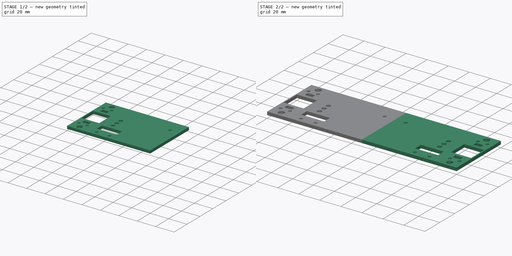
[diagram: build sequence overview — one tinted view per stage of 2, left to right]
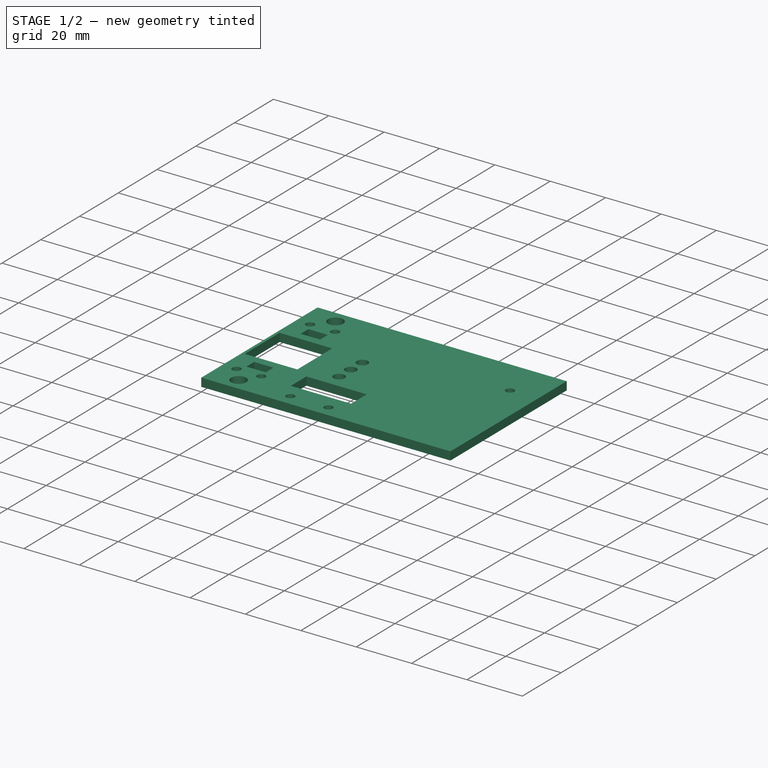
[diagram: stage 1 of 2 — iso view after this stage's code; geometry added in this stage tinted green]
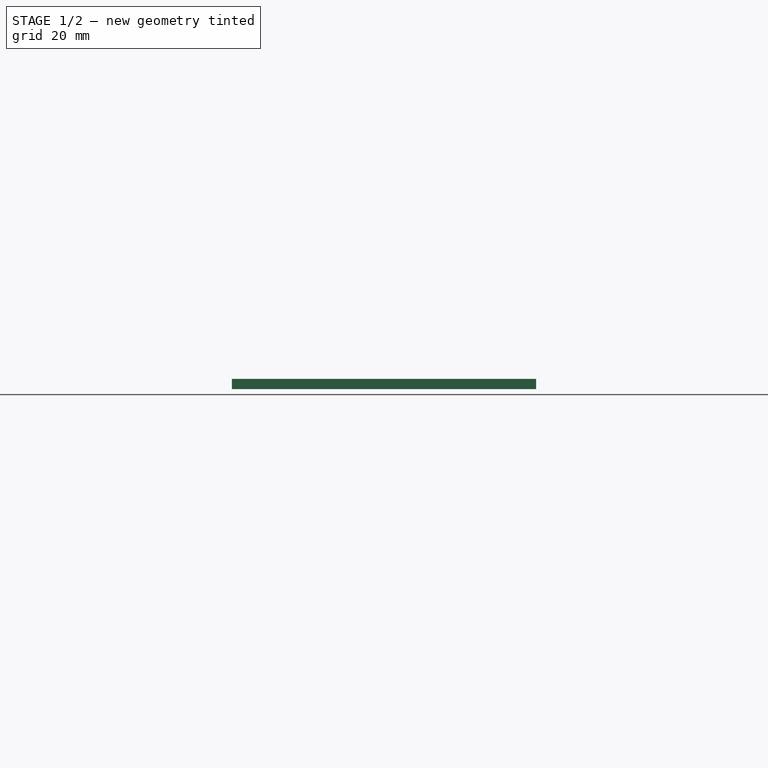
[diagram: stage 1 of 2 — front view after this stage's code; geometry added in this stage tinted green]
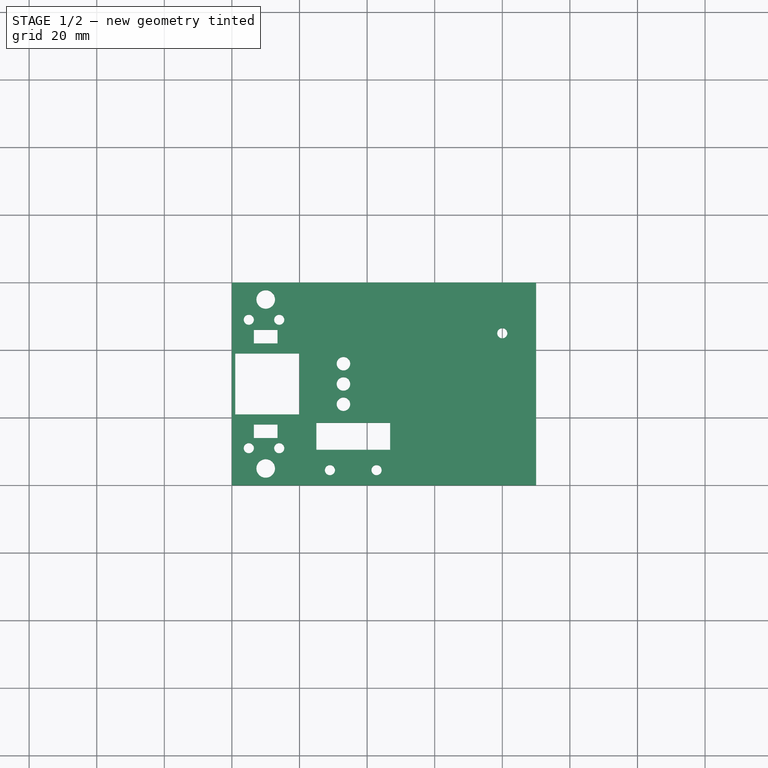
[diagram: stage 1 of 2 — top view after this stage's code; geometry added in this stage tinted green]
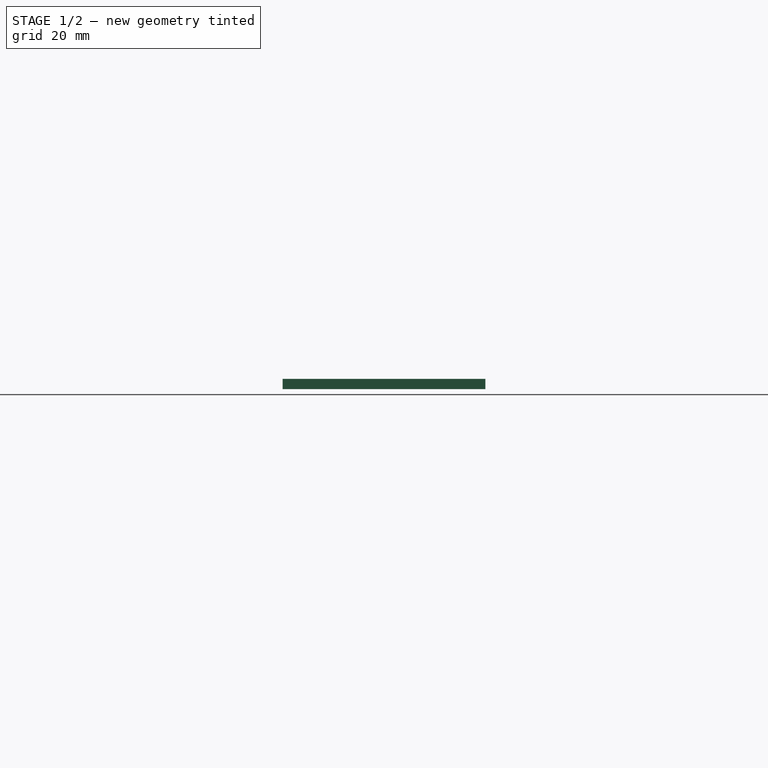
[diagram: stage 1 of 2 — right view after this stage's code; geometry added in this stage tinted green]
FCSTD DOCUMENT  (FreeCAD 0.16R6707 (Git))
Label: support_support_guidage_horizontal
License: All rights reserved
LicenseURL: http://en.wikipedia.org/wiki/All_rights_reserved
objects: Sketcher::SketchObject×1, PartDesign::Pad×1, PartDesign::Mirrored×1, Drawing::FeatureViewPart×1, Drawing::FeaturePage×1
note: 4 computed .brp shape members not serialized (recipe doc carries the construction recipe); baked Part::Feature solids carry a one-line shape summary decoded from their .brp

FEATURE [Sketcher::SketchObject] Sketch
  sketch-geometry (48):
    g0: LineSegment StartX=0 StartY=0 StartZ=0 EndX=90 EndY=0 EndZ=0
    g1: LineSegment StartX=0 StartY=60 StartZ=0 EndX=0 EndY=0 EndZ=0
    g2: GeomPoint [constr] X=10 Y=5 Z=0
    g3: GeomPoint [constr] X=6.5 Y=14 Z=0
    g4: Circle CenterX=10 CenterY=5 CenterZ=0 NormalX=0 NormalY=0 NormalZ=1 Radius=2.75
    g5: GeomPoint [constr] X=33 Y=30 Z=0
    g6: GeomPoint [constr] X=33 Y=24 Z=0
    g7: Circle CenterX=33 CenterY=24 CenterZ=0 NormalX=0 NormalY=0 NormalZ=1 Radius=2
    g8: LineSegment StartX=6.5 StartY=14 StartZ=0 EndX=13.5 EndY=14 EndZ=0
    g9: LineSegment StartX=13.5 StartY=14 StartZ=0 EndX=13.5 EndY=18 EndZ=0
    g10: LineSegment StartX=13.5 StartY=18 StartZ=0 EndX=6.5 EndY=18 EndZ=0
    g11: LineSegment StartX=6.5 StartY=18 StartZ=0 EndX=6.5 EndY=14 EndZ=0
    g12: LineSegment StartX=90 StartY=0 StartZ=0 EndX=90 EndY=60 EndZ=0
    g13: GeomPoint [constr] X=33 Y=36 Z=0
    g14: Circle CenterX=33 CenterY=36 CenterZ=0 NormalX=0 NormalY=0 NormalZ=1 Radius=2
    g15: Circle CenterX=33 CenterY=30 CenterZ=0 NormalX=0 NormalY=0 NormalZ=1 Radius=2
    g16: LineSegment StartX=0 StartY=60 StartZ=0 EndX=90 EndY=60 EndZ=0
    g17: GeomPoint [constr] X=6.5 Y=46 Z=0
    g18: LineSegment StartX=6.5 StartY=46 StartZ=0 EndX=13.5 EndY=46 EndZ=0
    g19: LineSegment StartX=13.5 StartY=46 StartZ=0 EndX=13.5 EndY=42 EndZ=0
    g20: LineSegment StartX=13.5 StartY=42 StartZ=0 EndX=6.5 EndY=42 EndZ=0
    g21: LineSegment StartX=6.5 StartY=42 StartZ=0 EndX=6.5 EndY=46 EndZ=0
    g22: GeomPoint [constr] X=10 Y=55 Z=0
    g23: Circle CenterX=10 CenterY=55 CenterZ=0 NormalX=0 NormalY=0 NormalZ=1 Radius=2.75
    g24: GeomPoint [constr] X=20 Y=49 Z=0
    g25: GeomPoint [constr] X=20 Y=11 Z=0
    g26: GeomPoint [constr] X=23 Y=11 Z=0
    g27: GeomPoint [constr] X=23 Y=49 Z=0
    g28: GeomPoint [constr] X=14 Y=49 Z=0
    g29: GeomPoint [constr] X=5 Y=49 Z=0
    g30: GeomPoint [constr] X=14 Y=11 Z=0
    g31: GeomPoint [constr] X=5 Y=11 Z=0
    g32: Circle CenterX=14 CenterY=11 CenterZ=0 NormalX=0 NormalY=0 NormalZ=1 Radius=1.5
    g33: Circle CenterX=5 CenterY=11 CenterZ=0 NormalX=0 NormalY=0 NormalZ=1 Radius=1.5
    g34: Circle CenterX=14 CenterY=49 CenterZ=0 NormalX=0 NormalY=0 NormalZ=1 Radius=1.5
    g35: Circle CenterX=5 CenterY=49 CenterZ=0 NormalX=0 NormalY=0 NormalZ=1 Radius=1.5
    g36: GeomPoint [constr] X=20 Y=39 Z=0
    g37: LineSegment StartX=20 StartY=39 StartZ=0 EndX=1 EndY=39 EndZ=0
    g38: LineSegment StartX=1 StartY=39 StartZ=0 EndX=1 EndY=21 EndZ=0
    g39: LineSegment StartX=1 StartY=21 StartZ=0 EndX=20 EndY=21 EndZ=0
    g40: LineSegment StartX=20 StartY=21 StartZ=0 EndX=20 EndY=39 EndZ=0
    g41: Circle CenterX=80 CenterY=45 CenterZ=0 NormalX=0 NormalY=0 NormalZ=1 Radius=1.5
    g42: Circle CenterX=29 CenterY=4.5 CenterZ=0 NormalX=0 NormalY=0 NormalZ=1 Radius=1.5
    g43: Circle CenterX=42.8 CenterY=4.5 CenterZ=0 NormalX=0 NormalY=0 NormalZ=1 Radius=1.5
    g44: LineSegment StartX=25 StartY=18.5 StartZ=0 EndX=46.8 EndY=18.5 EndZ=0
    g45: LineSegment StartX=46.8 StartY=18.5 StartZ=0 EndX=46.8 EndY=10.5 EndZ=0
    g46: LineSegment StartX=46.8 StartY=10.5 StartZ=0 EndX=25 EndY=10.5 EndZ=0
    g47: LineSegment StartX=25 StartY=10.5 StartZ=0 EndX=25 EndY=18.5 EndZ=0
  constraints (115):
    c: Coincident(g1,g0)
    c: Horizontal(g0)
    c: Vertical(g1)
    c: Coincident(g0,g-1)
    c: Distance(g1) = 60
    c: Distance(g0) = 90
    c: DistanceY(g2) = 5
    c: DistanceX(g2) = 10
    c: Coincident(g4,g2)
    c: Radius(g4) = 2.75
    c: DistanceX(g3) = 6.5
    c: DistanceY(g3) = 14
    c: DistanceY(g5) = 30
    c: DistanceX(g5) = 33
    c: DistanceY(g6,g5) = 6
    c: DistanceX(g5,g6) = 0
    c: Coincident(g7,g6)
    c: Coincident(g8,g9)
    c: Coincident(g9,g10)
    c: Coincident(g10,g11)
    c: Coincident(g11,g8)
    c: Horizontal(g8)
    c: Horizontal(g10)
    c: Vertical(g9)
    c: Vertical(g11)
    c: Coincident(g8,g3)
    c: Distance(g10) = 7
    c: Distance(g9) = 4
    c: Coincident(g12,g0)
    c: Vertical(g12)
    c: DistanceY(g5,g13) = 6
    c: DistanceX(g5,g13) = 0
    c: Coincident(g14,g13)
    c: Coincident(g15,g5)
    c: Radius(g15) = 2
    c: Equal(g15,g14)
    c: Equal(g15,g7)
    c: Coincident(g16,g1)
    c: Coincident(g16,g12)
    c: Horizontal(g16)
    c: DistanceX(g3,g17) = 0
    c: Coincident(g18,g19)
    c: Coincident(g19,g20)
    c: Coincident(g20,g21)
    c: Coincident(g21,g18)
    c: Horizontal(g18)
    c: Horizontal(g20)
    c: Vertical(g19)
    c: Vertical(g21)
    c: Coincident(g18,g17)
    c: Distance(g18) = 7
    c: Distance(g19) = 4
    c: DistanceY(g22,g1) = 5
    c: DistanceX(g22) = 10
    c: DistanceY(g17,g1) = 14
    c: Coincident(g23,g22)
    c: Radius(g23) = 2.75
    c: DistanceX(g24) = 20
    c: DistanceX(g24,g25) = 0
    c: DistanceY(g25) = 11
    c: DistanceY(g24,g1) = 11
    c: DistanceY(g25,g26) = 0
    c: DistanceX(g25,g26) = 3
    c: DistanceY(g24,g27) = 0
    c: DistanceX(g24,g27) = 3
    c: DistanceY(g27,g28) = 0
    c: DistanceY(g28,g29) = 0
    c: DistanceX(g28,g29) = -9
    c: DistanceY(g26,g30) = 0
    c: DistanceY(g31,g30) = 0
    c: DistanceX(g30,g31) = -9
    c: Coincident(g32,g30)
    c: Coincident(g33,g31)
    c: Coincident(g34,g28)
    c: Coincident(g35,g29)
    c: Radius(g34) = 1.5
    c: Equal(g34,g35)
    c: Equal(g34,g33)
    c: Equal(g34,g32)
    c: DistanceX(g25,g30) = -6
    c: DistanceX(g24,g28) = -6
    c: DistanceX(g36,g24) = 0
    c: DistanceY(g13,g36) = 3
    c: Coincident(g37,g38)
    c: Coincident(g38,g39)
    c: Coincident(g39,g40)
    c: Coincident(g40,g37)
    c: Horizontal(g37)
    c: Horizontal(g39)
    c: Vertical(g38)
    c: Vertical(g40)
    c: Coincident(g37,g36)
    c: Distance(g37) = 19
    c: Distance(g38) = 18
    c: DistanceX(g41,g12) = 10
    c: Radius(g41) = 1.5
    c: DistanceY(g41,g1) = 15
    c: Coincident(g44,g45)
    c: Coincident(g45,g46)
    c: Coincident(g46,g47)
    c: Coincident(g47,g44)
    c: Horizontal(g44)
    c: Horizontal(g46)
    c: Vertical(g45)
    c: Vertical(g47)
    c: DistanceX(g42,g43) = 13.8
    c: Radius(g43) = 1.5
    c: Equal(g43,g42)
    c: DistanceY(g42,g43) = 0
    c: Distance(g47) = 8
    c: DistanceY(g42,g46) = 6
    c: Distance(g46) = 21.8
    c: DistanceX(g46,g42) = 4
    c: DistanceY(g42) = 4.5
    c: DistanceX(g27,g44) = 2
FEATURE [PartDesign::Pad] Pad
  Length = 3
  Length2 = 100
  Sketch = -> Sketch
  Type = 0
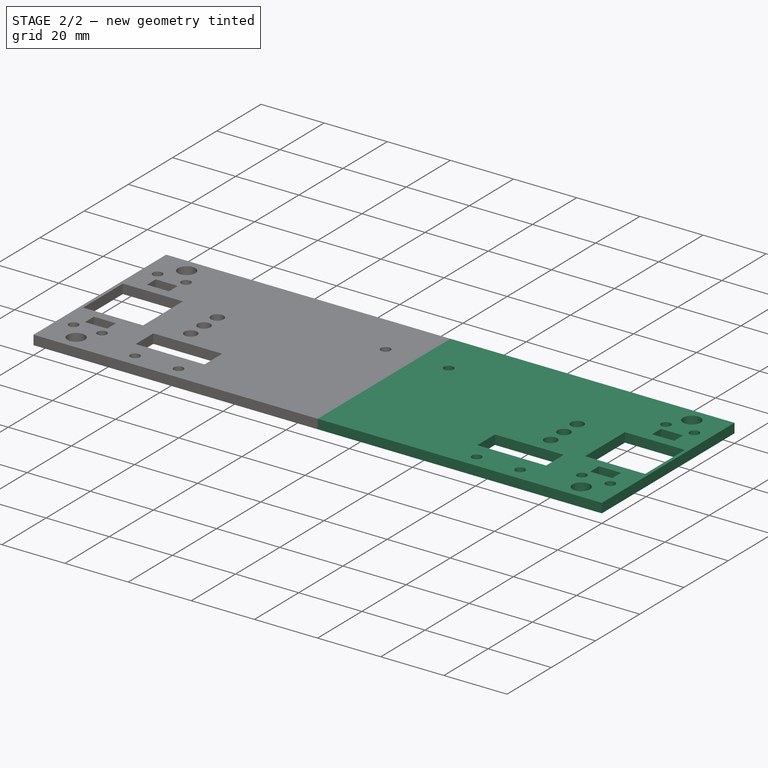
[diagram: stage 2 of 2 — iso view after this stage's code; geometry added in this stage tinted green]
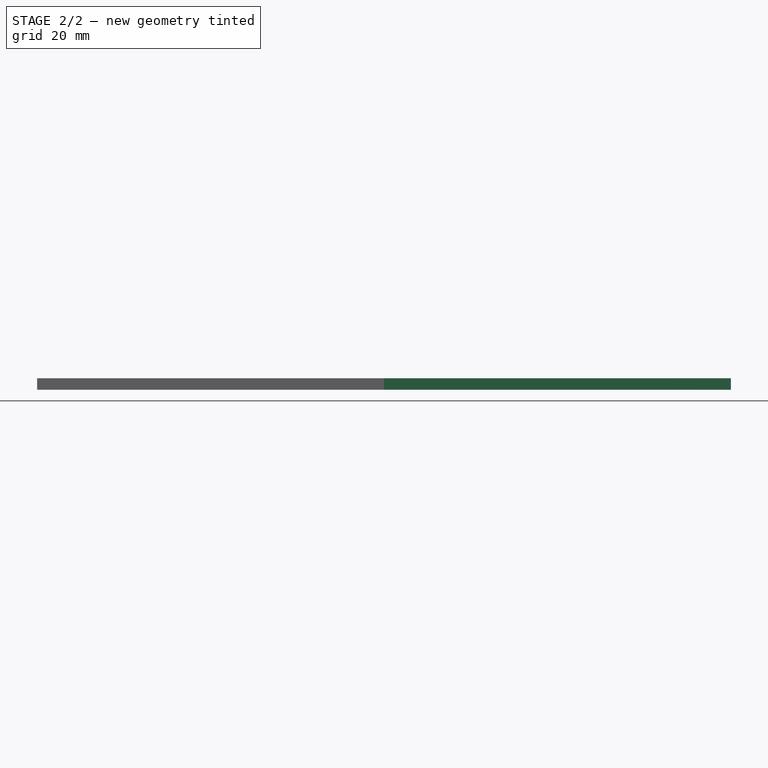
[diagram: stage 2 of 2 — front view after this stage's code; geometry added in this stage tinted green]
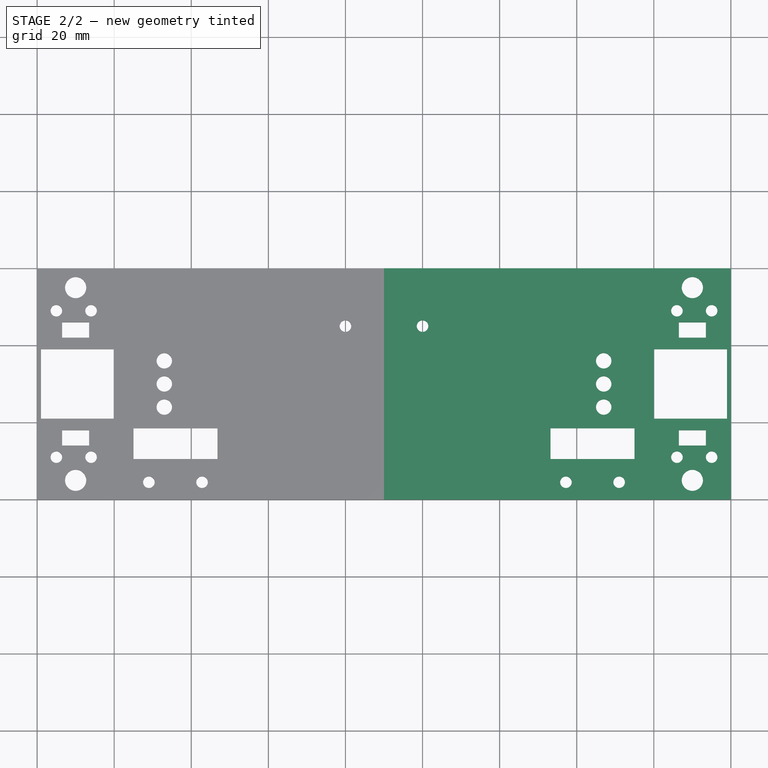
[diagram: stage 2 of 2 — top view after this stage's code; geometry added in this stage tinted green]
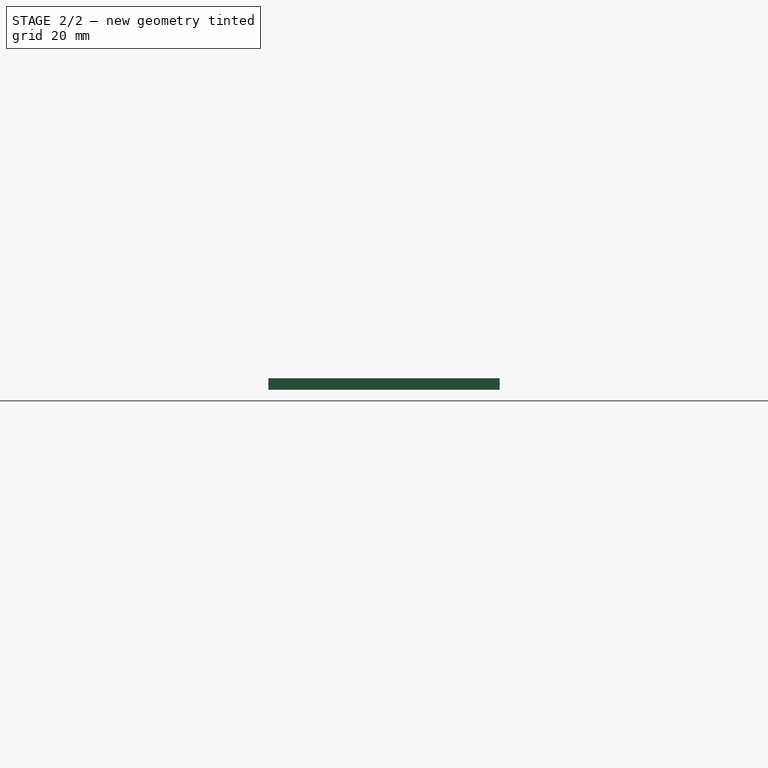
[diagram: stage 2 of 2 — right view after this stage's code; geometry added in this stage tinted green]
FEATURE [PartDesign::Mirrored] Mirrored
  MirrorPlane = -> Pad [Face2]
  Originals = -> [Pad]
FEATURE [Drawing::FeatureViewPart] Ortho  label="Ortho_0_0"
  Direction = (0,0,1)
  HiddenWidth = 0.15
  LineWidth = 0.35
  Rotation = 0
  ShowHiddenLines = false
  ShowSmoothLines = false
  Source = -> Mirrored
  Tolerance = 0.05
  ViewResult = <blob: 2821 chars omitted>
  Visible = true
  X = 120
  Y = 148.5
FEATURE [Drawing::FeaturePage] Page
  EditableTexts = AUTHOR NAME | CREATION DATE | SUPERVISOR NAME | CHECK DATE | SCALE | WEIGHT | NUMBER | SHEET | TITLE | SUBTITLE
  Group = -> [Ortho]
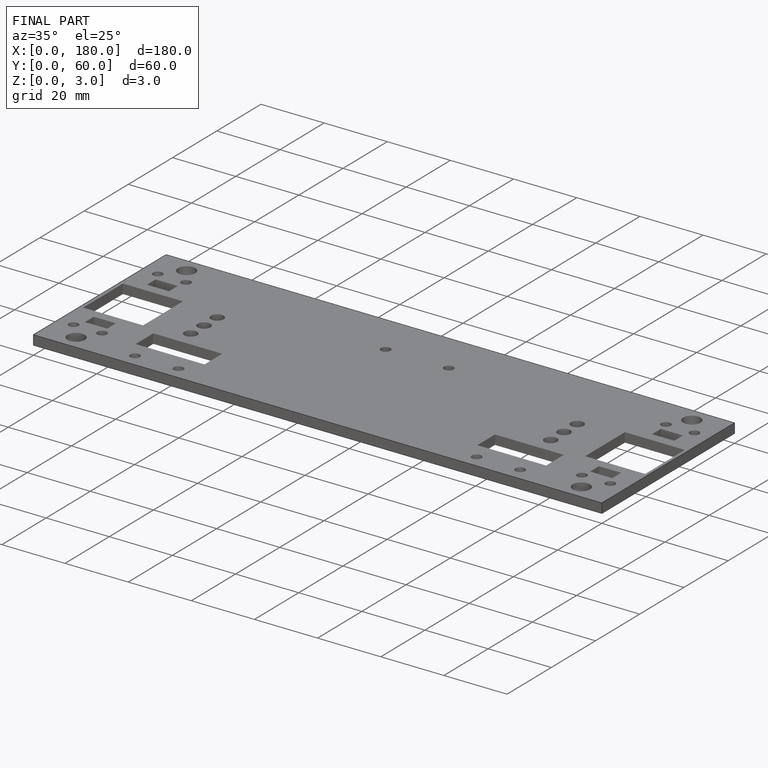
[diagram: finished part — iso view with bounding-box wireframe]
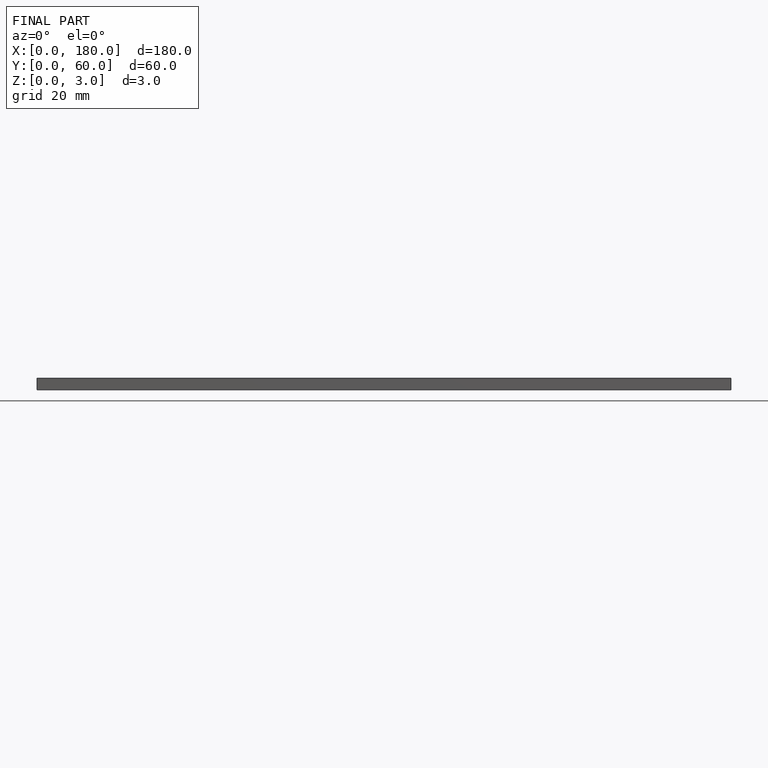
[diagram: finished part — front view with bounding-box wireframe]
